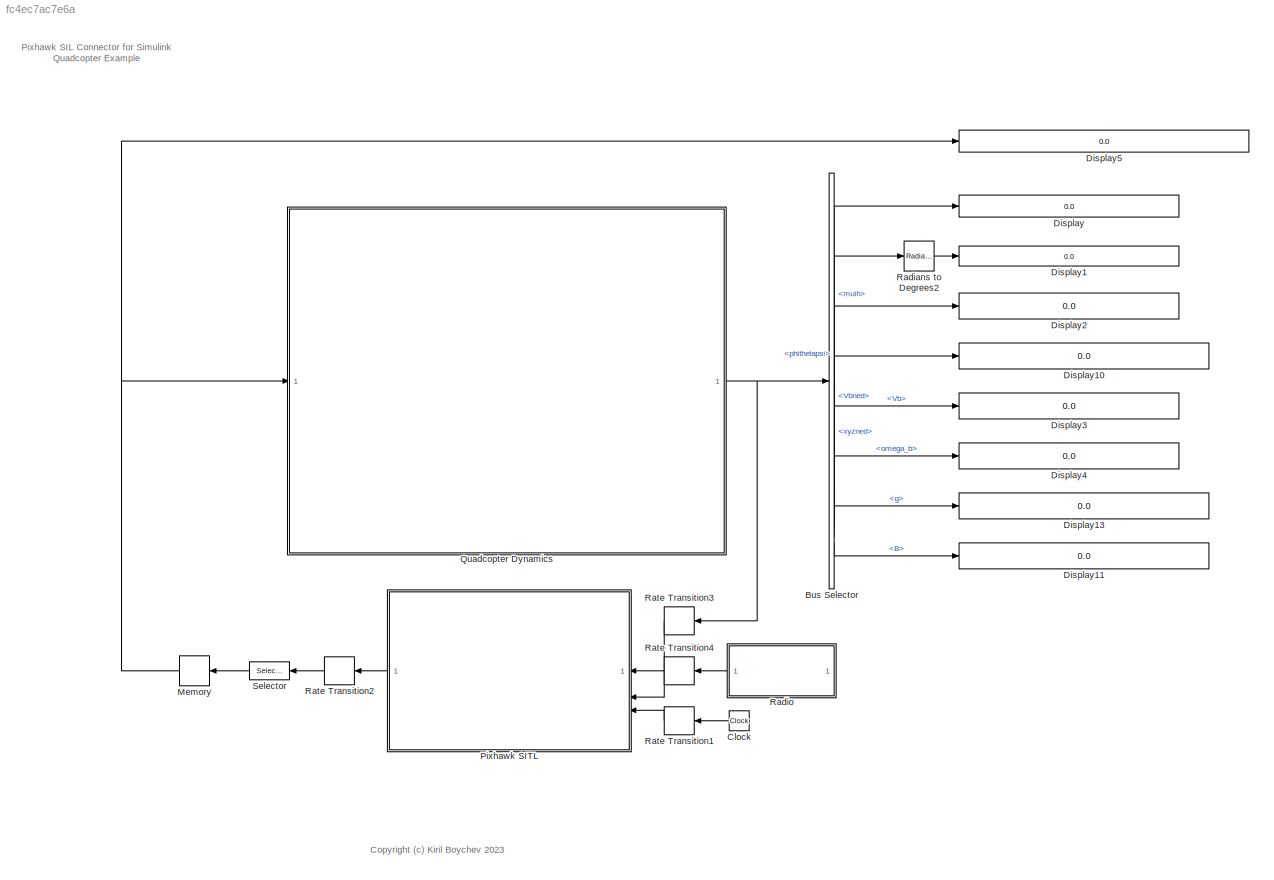
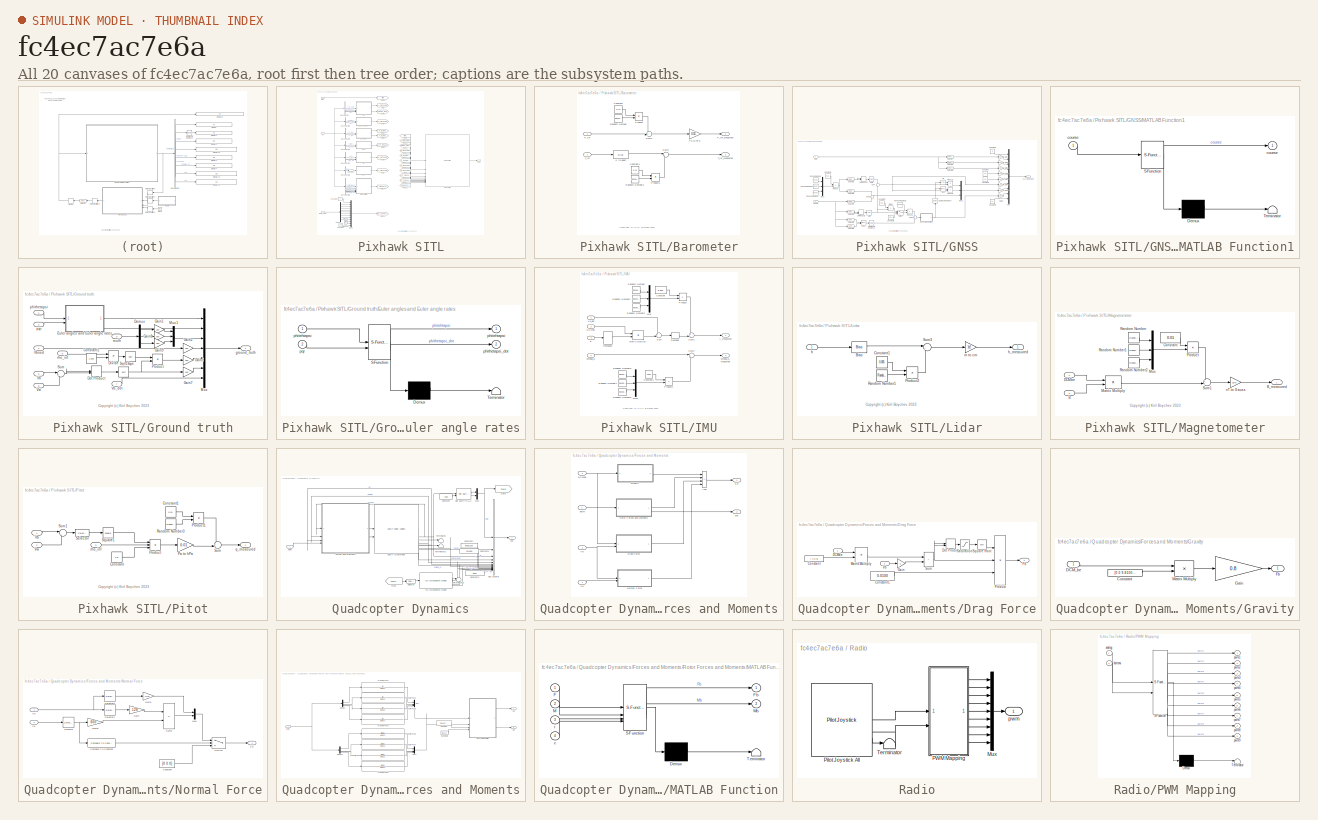
[diagram: thumbnail index - all 20 canvases of the model, root first then tree order]
MODEL slx_fc4ec7ac7e6a
KIND model
CONFIG AbsTol = auto
CONFIG EnableMultiTasking = off
CONFIG FixedStep = 0.004
CONFIG MaxStep = auto
CONFIG MinStep = auto
CONFIG RelTol = 1e-3
CONFIG SampleTimeConstraint = Unconstrained
CONFIG SolverName = ode4
CONFIG StartTime = 0.0
CONFIG StopTime = inf
WORKSPACE source: mxarray member
WORKSPACE sample_time = 0.004
BLOCK [BusSelector] Bus Selector
  OutputSignals = mulh,phithetapsi,Vbned,xyzned,Vb,omega_b,g,B
BLOCK [Clock] Clock
  NameLocation = top
BLOCK [Display] Display
  Decimation = 1
BLOCK [Display] Display1
  Decimation = 1
BLOCK [Display] Display10
  Decimation = 1
BLOCK [Display] Display11
  Decimation = 1
BLOCK [Display] Display13
  Decimation = 1
BLOCK [Display] Display2
  Decimation = 1
BLOCK [Display] Display3
  Decimation = 1
BLOCK [Display] Display4
  Decimation = 1
BLOCK [Display] Display5
  Decimation = 1
BLOCK [Memory] Memory
  InitialCondition = [0 0 0 0]
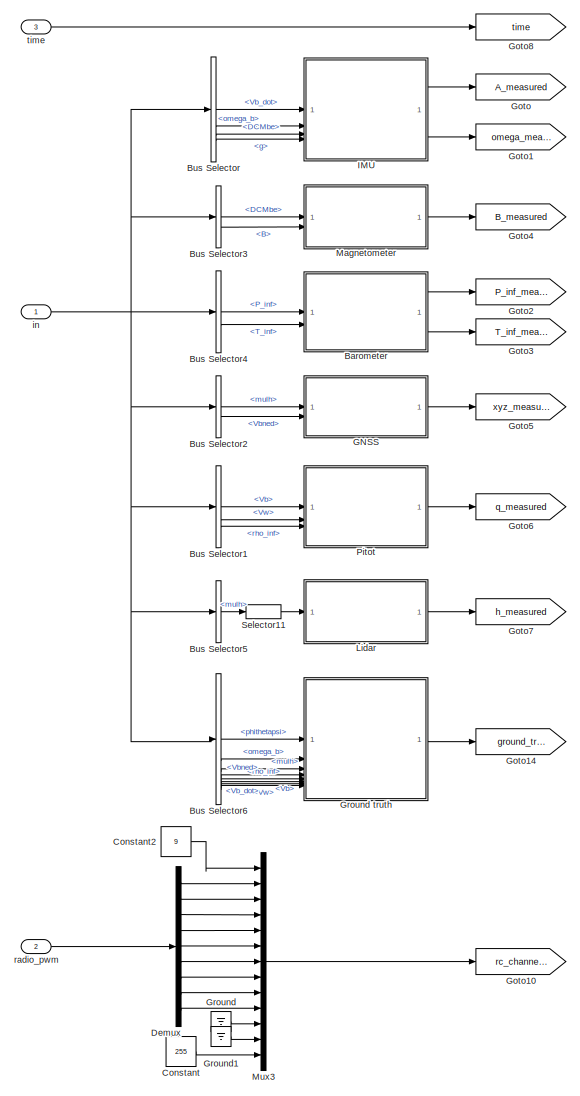
[diagram: Pixhawk SITL - part 1/2, left side, full height]
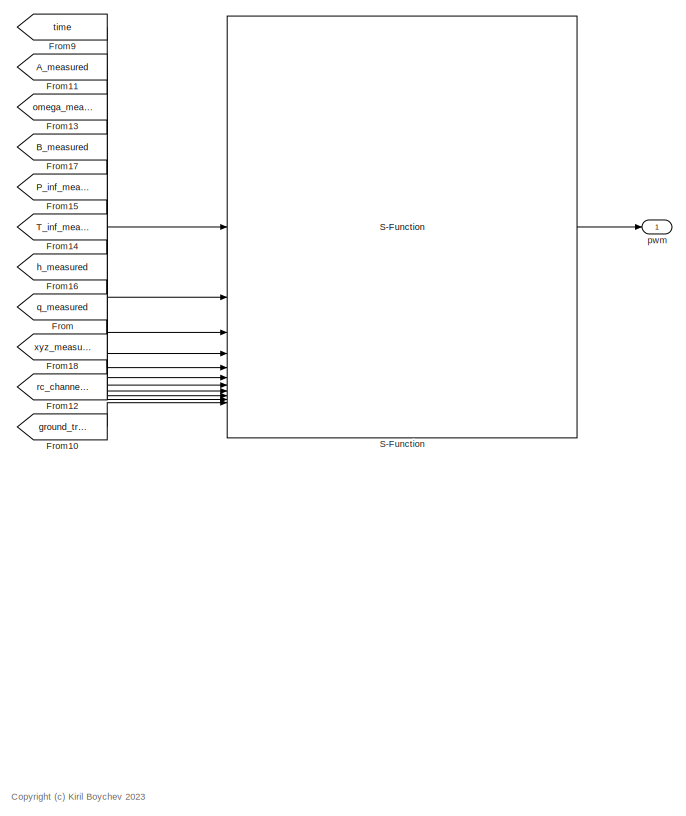
[diagram: Pixhawk SITL - part 2/2, middle right region]
BLOCK [SubSystem] Pixhawk SITL
BLOCK [SubSystem] Pixhawk SITL/Barometer
BLOCK [Constant] Pixhawk SITL/Barometer/Constant
  Value = 0.04
BLOCK [Constant] Pixhawk SITL/Barometer/Constant1
  Value = 0.01
BLOCK [Bias] Pixhawk SITL/Barometer/K to degC
  Bias = -273.15
  SaturateOnIntegerOverflow = off
BLOCK [Inport] Pixhawk SITL/Barometer/P_inf
BLOCK [Outport] Pixhawk SITL/Barometer/P_inf_measured
BLOCK [Gain] Pixhawk SITL/Barometer/Pa to hPa
  Gain = 0.01
BLOCK [Product] Pixhawk SITL/Barometer/Product
BLOCK [Product] Pixhawk SITL/Barometer/Product1
BLOCK [RandomNumber] Pixhawk SITL/Barometer/Random Number
  SampleTime = sample_time
  Seed = 9
BLOCK [RandomNumber] Pixhawk SITL/Barometer/Random Number3
  SampleTime = sample_time
  Seed = 10
BLOCK [Sum] Pixhawk SITL/Barometer/Sum1
  Inputs = ++|
BLOCK [Sum] Pixhawk SITL/Barometer/Sum2
  Inputs = |++
BLOCK [Inport] Pixhawk SITL/Barometer/T_inf
  Port = 2
BLOCK [Outport] Pixhawk SITL/Barometer/T_inf_measured
  Port = 2
BLOCK [BusSelector] Pixhawk SITL/Bus Selector
  OutputSignals = Vb_dot,omega_b,DCMbe,g
BLOCK [BusSelector] Pixhawk SITL/Bus Selector1
  OutputSignals = Vb,Vw,rho_inf
BLOCK [BusSelector] Pixhawk SITL/Bus Selector2
  OutputSignals = mulh,Vbned
BLOCK [BusSelector] Pixhawk SITL/Bus Selector3
  OutputSignals = DCMbe,B
BLOCK [BusSelector] Pixhawk SITL/Bus Selector4
  OutputSignals = P_inf,T_inf
BLOCK [BusSelector] Pixhawk SITL/Bus Selector5
  OutputSignals = mulh
BLOCK [BusSelector] Pixhawk SITL/Bus Selector6
  OutputSignals = phithetapsi,omega_b,mulh,Vbned,rho_inf,Vb,Vb_dot,Vw
BLOCK [Constant] Pixhawk SITL/Constant
  Value = 255
BLOCK [Constant] Pixhawk SITL/Constant2
  Value = 9
BLOCK [Demux] Pixhawk SITL/Demux
  Outputs = 9
BLOCK [From] Pixhawk SITL/From
  GotoTag = q_measured
BLOCK [From] Pixhawk SITL/From10
  GotoTag = ground_truth
BLOCK [From] Pixhawk SITL/From11
  GotoTag = A_measured
BLOCK [From] Pixhawk SITL/From12
  GotoTag = rc_channels
BLOCK [From] Pixhawk SITL/From13
  GotoTag = omega_measured
BLOCK [From] Pixhawk SITL/From14
  GotoTag = T_inf_measured
BLOCK [From] Pixhawk SITL/From15
  GotoTag = P_inf_measured
BLOCK [From] Pixhawk SITL/From16
  GotoTag = h_measured
BLOCK [From] Pixhawk SITL/From17
  GotoTag = B_measured
BLOCK [From] Pixhawk SITL/From18
  GotoTag = xyz_measured
BLOCK [From] Pixhawk SITL/From9
  GotoTag = time
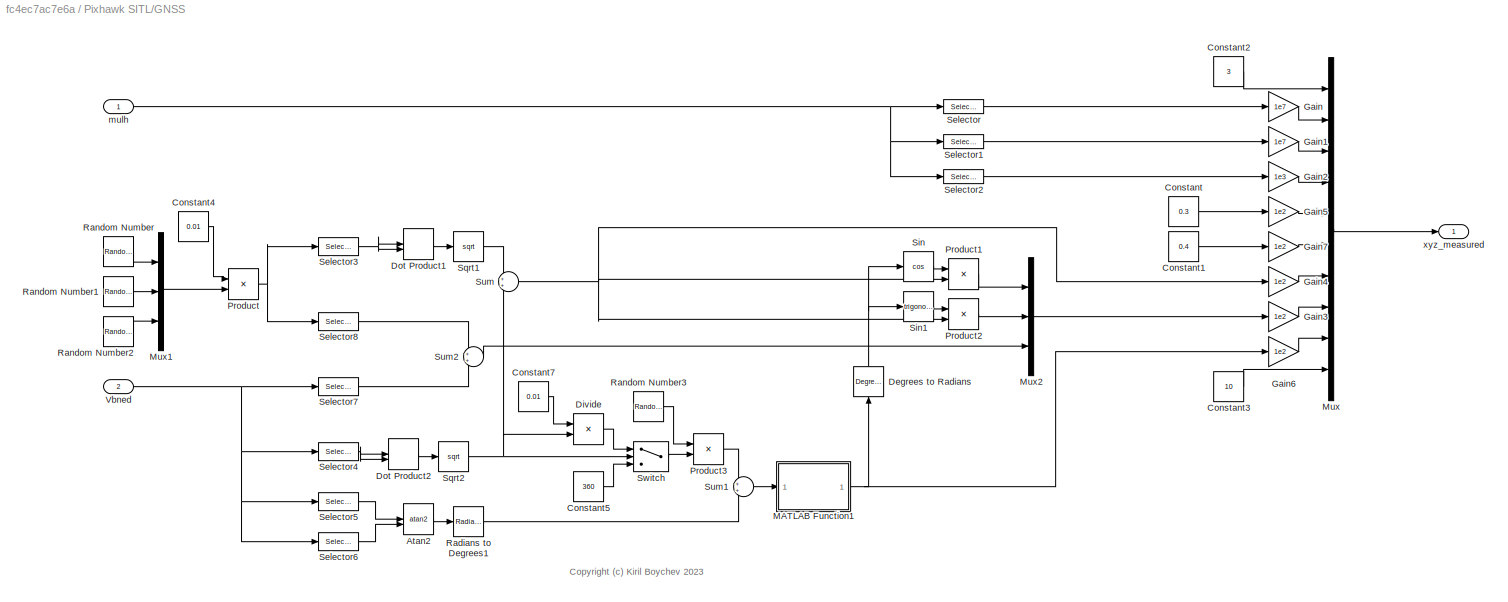
BLOCK [SubSystem] Pixhawk SITL/GNSS
BLOCK [Trigonometry] Pixhawk SITL/GNSS/Atan2
  Operator = atan2
BLOCK [Constant] Pixhawk SITL/GNSS/Constant
  Value = 0.3
BLOCK [Constant] Pixhawk SITL/GNSS/Constant1
  Value = 0.4
BLOCK [Constant] Pixhawk SITL/GNSS/Constant2
  Value = 3
BLOCK [Constant] Pixhawk SITL/GNSS/Constant3
  Value = 10
BLOCK [Constant] Pixhawk SITL/GNSS/Constant4
  Value = 0.01
BLOCK [Constant] Pixhawk SITL/GNSS/Constant5
  Value = 360
BLOCK [Constant] Pixhawk SITL/GNSS/Constant7
  Value = 0.01
BLOCK [Reference] Pixhawk SITL/GNSS/Degrees to Radians  REF=simulink_extras/Transformations/Degrees to
Radians
  NameLocation = right
  SourceBlock = simulink_extras/Transformations/Degrees to\nRadians
  SourceType = DegreesToRadians
BLOCK [Product] Pixhawk SITL/GNSS/Divide
  Inputs = */
BLOCK [DotProduct] Pixhawk SITL/GNSS/Dot Product1
  OutDataTypeStr = Inherit: Inherit via internal rule
BLOCK [DotProduct] Pixhawk SITL/GNSS/Dot Product2
  OutDataTypeStr = Inherit: Inherit via internal rule
BLOCK [Gain] Pixhawk SITL/GNSS/Gain
  Gain = 1e7
BLOCK [Gain] Pixhawk SITL/GNSS/Gain1
  Gain = 1e7
BLOCK [Gain] Pixhawk SITL/GNSS/Gain2
  Gain = 1e3
BLOCK [Gain] Pixhawk SITL/GNSS/Gain3
  Gain = 1e2
BLOCK [Gain] Pixhawk SITL/GNSS/Gain4
  Gain = 1e2
BLOCK [Gain] Pixhawk SITL/GNSS/Gain5
  Gain = 1e2
BLOCK [Gain] Pixhawk SITL/GNSS/Gain6
  Gain = 1e2
BLOCK [Gain] Pixhawk SITL/GNSS/Gain7
  Gain = 1e2
BLOCK [SubSystem] Pixhawk SITL/GNSS/MATLAB Function1
  ErrorFcn = Stateflow.Translate.translate
  PermitHierarchicalResolution = ExplicitOnly
  SFBlockType = MATLAB Function
  TreatAsAtomicUnit = on
BLOCK [Demux] Pixhawk SITL/GNSS/MATLAB Function1/ Demux 
  Outputs = 1
BLOCK [S-Function] Pixhawk SITL/GNSS/MATLAB Function1/ SFunction 
  EnableBusSupport = off
  FunctionName = sf_sfun
  PortCounts = [1 2]
  SFcnIsStateOwnerBlock = off
  SFunctionDeploymentMode = off
  Tag = Stateflow S-Function 7
BLOCK [Terminator] Pixhawk SITL/GNSS/MATLAB Function1/ Terminator 
BLOCK [Outport] Pixhawk SITL/GNSS/MATLAB Function1/course
BLOCK [Inport] Pixhawk SITL/GNSS/MATLAB Function1/course 
BLOCK [Mux] Pixhawk SITL/GNSS/Mux
  DisplayOption = bar
  Inputs = 10
BLOCK [Mux] Pixhawk SITL/GNSS/Mux1
  DisplayOption = bar
  Inputs = 3
BLOCK [Mux] Pixhawk SITL/GNSS/Mux2
  DisplayOption = bar
  Inputs = 3
BLOCK [Product] Pixhawk SITL/GNSS/Product
BLOCK [Product] Pixhawk SITL/GNSS/Product1
BLOCK [Product] Pixhawk SITL/GNSS/Product2
BLOCK [Product] Pixhawk SITL/GNSS/Product3
BLOCK [Reference] Pixhawk SITL/GNSS/Radians to Degrees1  REF=simulink_extras/Transformations/Radians
to Degrees
  SourceBlock = simulink_extras/Transformations/Radians\nto Degrees
  SourceType = RadiansToDegrees
BLOCK [RandomNumber] Pixhawk SITL/GNSS/Random Number
  SampleTime = sample_time
  Seed = 11
BLOCK [RandomNumber] Pixhawk SITL/GNSS/Random Number1
  SampleTime = sample_time
  Seed = 12
BLOCK [RandomNumber] Pixhawk SITL/GNSS/Random Number2
  SampleTime = sample_time
  Seed = 13
BLOCK [RandomNumber] Pixhawk SITL/GNSS/Random Number3
  SampleTime = sample_time
  Seed = 14
BLOCK [Selector] Pixhawk SITL/GNSS/Selector
  IndexMode = Zero-based
  IndexOptions = Index vector (dialog)
  Indices = 0
  InputPortWidth = 3
  OutputSizes = 1
BLOCK [Selector] Pixhawk SITL/GNSS/Selector1
  IndexMode = Zero-based
  IndexOptions = Index vector (dialog)
  Indices = 1
  InputPortWidth = 3
  OutputSizes = 1
BLOCK [Selector] Pixhawk SITL/GNSS/Selector2
  IndexMode = Zero-based
  IndexOptions = Index vector (dialog)
  Indices = 2
  InputPortWidth = 3
  OutputSizes = 1
BLOCK [Selector] Pixhawk SITL/GNSS/Selector3
  IndexMode = Zero-based
  IndexOptions = Index vector (dialog)
  Indices = [0 1]
  InputPortWidth = 3
  OutputSizes = 1
BLOCK [Selector] Pixhawk SITL/GNSS/Selector4
  IndexMode = Zero-based
  IndexOptions = Index vector (dialog)
  Indices = [0 1]
  InputPortWidth = 3
  OutputSizes = 1
BLOCK [Selector] Pixhawk SITL/GNSS/Selector5
  IndexMode = Zero-based
  IndexOptions = Index vector (dialog)
  Indices = 1
  InputPortWidth = 3
  OutputSizes = 1
BLOCK [Selector] Pixhawk SITL/GNSS/Selector6
  IndexMode = Zero-based
  IndexOptions = Index vector (dialog)
  Indices = 0
  InputPortWidth = 3
  OutputSizes = 1
BLOCK [Selector] Pixhawk SITL/GNSS/Selector7
  IndexMode = Zero-based
  IndexOptions = Index vector (dialog)
  Indices = 2
  InputPortWidth = 3
  OutputSizes = 1
BLOCK [Selector] Pixhawk SITL/GNSS/Selector8
  IndexMode = Zero-based
  IndexOptions = Index vector (dialog)
  Indices = 2
  InputPortWidth = 3
  OutputSizes = 1
BLOCK [Trigonometry] Pixhawk SITL/GNSS/Sin
  Operator = cos
BLOCK [Trigonometry] Pixhawk SITL/GNSS/Sin1
BLOCK [Sqrt] Pixhawk SITL/GNSS/Sqrt1
BLOCK [Sqrt] Pixhawk SITL/GNSS/Sqrt2
BLOCK [Sum] Pixhawk SITL/GNSS/Sum
  NameLocation = top
BLOCK [Sum] Pixhawk SITL/GNSS/Sum1
BLOCK [Sum] Pixhawk SITL/GNSS/Sum2
BLOCK [Switch] Pixhawk SITL/GNSS/Switch
  Criteria = u2 > Threshold
  InputSameDT = off
  SaturateOnIntegerOverflow = off
BLOCK [Inport] Pixhawk SITL/GNSS/Vbned
  Port = 2
BLOCK [Inport] Pixhawk SITL/GNSS/mulh
BLOCK [Outport] Pixhawk SITL/GNSS/xyz_measured
BLOCK [Goto] Pixhawk SITL/Goto
  GotoTag = A_measured
BLOCK [Goto] Pixhawk SITL/Goto1
  GotoTag = omega_measured
BLOCK [Goto] Pixhawk SITL/Goto10
  GotoTag = rc_channels
BLOCK [Goto] Pixhawk SITL/Goto14
  GotoTag = ground_truth
BLOCK [Goto] Pixhawk SITL/Goto2
  GotoTag = P_inf_measured
BLOCK [Goto] Pixhawk SITL/Goto3
  GotoTag = T_inf_measured
BLOCK [Goto] Pixhawk SITL/Goto4
  GotoTag = B_measured
BLOCK [Goto] Pixhawk SITL/Goto5
  GotoTag = xyz_measured
BLOCK [Goto] Pixhawk SITL/Goto6
  GotoTag = q_measured
BLOCK [Goto] Pixhawk SITL/Goto7
  GotoTag = h_measured
BLOCK [Goto] Pixhawk SITL/Goto8
  GotoTag = time
BLOCK [Ground] Pixhawk SITL/Ground
BLOCK [SubSystem] Pixhawk SITL/Ground truth
BLOCK [Constant] Pixhawk SITL/Ground truth/Constant1
  Value = 1.225
BLOCK [Demux] Pixhawk SITL/Ground truth/Demux
  Outputs = 3
BLOCK [Product] Pixhawk SITL/Ground truth/Divide
  Inputs = */
BLOCK [DotProduct] Pixhawk SITL/Ground truth/Dot Product
  OutDataTypeStr = Inherit: Inherit via internal rule
BLOCK [SubSystem] Pixhawk SITL/Ground truth/Euler angles and Euler angle rates
  ErrorFcn = Stateflow.Translate.translate
  PermitHierarchicalResolution = ExplicitOnly
  SFBlockType = MATLAB Function
  TreatAsAtomicUnit = on
BLOCK [Demux] Pixhawk SITL/Ground truth/Euler angles and Euler angle rates/ Demux 
  Outputs = 1
BLOCK [S-Function] Pixhawk SITL/Ground truth/Euler angles and Euler angle rates/ SFunction 
  EnableBusSupport = off
  FunctionName = sf_sfun
  PortCounts = [2 3]
  SFcnIsStateOwnerBlock = off
  SFunctionDeploymentMode = off
  Tag = Stateflow S-Function 8
BLOCK [Terminator] Pixhawk SITL/Ground truth/Euler angles and Euler angle rates/ Terminator 
BLOCK [Outport] Pixhawk SITL/Ground truth/Euler angles and Euler angle rates/phitehtapsi
BLOCK [Inport] Pixhawk SITL/Ground truth/Euler angles and Euler angle rates/phitehtapsi 
BLOCK [Outport] Pixhawk SITL/Ground truth/Euler angles and Euler angle rates/phithetapsi_dot
  Port = 2
BLOCK [Inport] Pixhawk SITL/Ground truth/Euler angles and Euler angle rates/pqr
  Port = 2
BLOCK [Gain] Pixhawk SITL/Ground truth/Gain1
  Gain = 1e7
BLOCK [Gain] Pixhawk SITL/Ground truth/Gain2
  Gain = 1e2
BLOCK [Gain] Pixhawk SITL/Ground truth/Gain5
  Gain = 1e2
BLOCK [Gain] Pixhawk SITL/Ground truth/Gain7
  Gain = 1e2
BLOCK [Gain] Pixhawk SITL/Ground truth/Gain8
  Gain = 1e7
BLOCK [Gain] Pixhawk SITL/Ground truth/Gain9
  Gain = 1e3
BLOCK [Mux] Pixhawk SITL/Ground truth/Mux
  DisplayOption = bar
  Inputs = 7
BLOCK [Mux] Pixhawk SITL/Ground truth/Mux1
  DisplayOption = bar
  Inputs = 3
BLOCK [Product] Pixhawk SITL/Ground truth/Product
BLOCK [Sqrt] Pixhawk SITL/Ground truth/Sqrt
BLOCK [Sqrt] Pixhawk SITL/Ground truth/Sqrt1
BLOCK [Sum] Pixhawk SITL/Ground truth/Sum
  Inputs = |+-
BLOCK [Inport] Pixhawk SITL/Ground truth/Vb
  Port = 6
BLOCK [Inport] Pixhawk SITL/Ground truth/Vb_dot
  Port = 7
BLOCK [Inport] Pixhawk SITL/Ground truth/Vbned
  Port = 4
BLOCK [Inport] Pixhawk SITL/Ground truth/Vw
  Port = 8
BLOCK [Outport] Pixhawk SITL/Ground truth/ground_truth
BLOCK [Inport] Pixhawk SITL/Ground truth/mulh
  Port = 3
BLOCK [Inport] Pixhawk SITL/Ground truth/phithetapsi
BLOCK [Inport] Pixhawk SITL/Ground truth/pqr
  Port = 2
BLOCK [Inport] Pixhawk SITL/Ground truth/rho_inf
  Port = 5
BLOCK [Ground] Pixhawk SITL/Ground1
BLOCK [SubSystem] Pixhawk SITL/IMU
BLOCK [Outport] Pixhawk SITL/IMU/A_measured
BLOCK [Constant] Pixhawk SITL/IMU/Constant
  Value = 0.004
BLOCK [Constant] Pixhawk SITL/IMU/Constant1
  Value = 0.002
BLOCK [Inport] Pixhawk SITL/IMU/DCMbe
  Port = 3
BLOCK [Product] Pixhawk SITL/IMU/Matrix Multiply
  Multiplication = Matrix(*)
BLOCK [Mux] Pixhawk SITL/IMU/Mux
  DisplayOption = bar
  Inputs = 3
BLOCK [Mux] Pixhawk SITL/IMU/Mux1
  DisplayOption = bar
  Inputs = 3
BLOCK [Product] Pixhawk SITL/IMU/Product
BLOCK [Product] Pixhawk SITL/IMU/Product1
BLOCK [RandomNumber] Pixhawk SITL/IMU/Random Number
  SampleTime = sample_time
BLOCK [RandomNumber] Pixhawk SITL/IMU/Random Number1
  SampleTime = sample_time
  Seed = 1
BLOCK [RandomNumber] Pixhawk SITL/IMU/Random Number2
  SampleTime = sample_time
  Seed = 2
BLOCK [RandomNumber] Pixhawk SITL/IMU/Random Number3
  SampleTime = sample_time
  Seed = 3
BLOCK [RandomNumber] Pixhawk SITL/IMU/Random Number4
  SampleTime = sample_time
  Seed = 4
BLOCK [RandomNumber] Pixhawk SITL/IMU/Random Number5
  SampleTime = sample_time
  Seed = 5
BLOCK [Reshape] Pixhawk SITL/IMU/Reshape
BLOCK [Reshape] Pixhawk SITL/IMU/Reshape1
  OutputDimensionality = Column vector (2-D)
BLOCK [Sum] Pixhawk SITL/IMU/Sum
  Inputs = +-|
BLOCK [Sum] Pixhawk SITL/IMU/Sum1
  Inputs = ++|
BLOCK [Sum] Pixhawk SITL/IMU/Sum2
  Inputs = |++
BLOCK [Inport] Pixhawk SITL/IMU/Vb_dot
BLOCK [Inport] Pixhawk SITL/IMU/g
  Port = 4
BLOCK [Inport] Pixhawk SITL/IMU/omega_b
  Port = 2
BLOCK [Outport] Pixhawk SITL/IMU/omega_b_measured
  Port = 2
BLOCK [SubSystem] Pixhawk SITL/Lidar
BLOCK [Bias] Pixhawk SITL/Lidar/Bias
  Bias = -488
  SaturateOnIntegerOverflow = off
BLOCK [Constant] Pixhawk SITL/Lidar/Constant1
  Value = 0.005
BLOCK [Product] Pixhawk SITL/Lidar/Product2
BLOCK [RandomNumber] Pixhawk SITL/Lidar/Random Number1
  SampleTime = sample_time
  Seed = 16
BLOCK [Sum] Pixhawk SITL/Lidar/Sum3
  Inputs = |++
BLOCK [Inport] Pixhawk SITL/Lidar/h
BLOCK [Outport] Pixhawk SITL/Lidar/h_measured
BLOCK [Gain] Pixhawk SITL/Lidar/m to cm
  Gain = 1e2
BLOCK [SubSystem] Pixhawk SITL/Magnetometer
BLOCK [Inport] Pixhawk SITL/Magnetometer/B
  Port = 2
BLOCK [Outport] Pixhawk SITL/Magnetometer/B_measured
BLOCK [Constant] Pixhawk SITL/Magnetometer/Constant
  Value = 0.01
BLOCK [Inport] Pixhawk SITL/Magnetometer/DCMbe
BLOCK [Product] Pixhawk SITL/Magnetometer/Matrix Multiply
  Multiplication = Matrix(*)
BLOCK [Mux] Pixhawk SITL/Magnetometer/Mux
  DisplayOption = bar
  Inputs = 3
BLOCK [Product] Pixhawk SITL/Magnetometer/Product
BLOCK [RandomNumber] Pixhawk SITL/Magnetometer/Random Number
  SampleTime = sample_time
  Seed = 6
BLOCK [RandomNumber] Pixhawk SITL/Magnetometer/Random Number1
  SampleTime = sample_time
  Seed = 7
BLOCK [RandomNumber] Pixhawk SITL/Magnetometer/Random Number2
  SampleTime = sample_time
  Seed = 8
BLOCK [Sum] Pixhawk SITL/Magnetometer/Sum1
  Inputs = ++|
BLOCK [Gain] Pixhawk SITL/Magnetometer/nT to Gauss
  Gain = 1e-5
BLOCK [Mux] Pixhawk SITL/Mux3
  DisplayOption = bar
  Inputs = 13
BLOCK [SubSystem] Pixhawk SITL/Pitot
BLOCK [Constant] Pixhawk SITL/Pitot/Constant
  Value = 0.5
BLOCK [Constant] Pixhawk SITL/Pitot/Constant1
  Value = 0.01
BLOCK [Gain] Pixhawk SITL/Pitot/Pa to hPa
  Gain = 0.01
BLOCK [Product] Pixhawk SITL/Pitot/Product
  Inputs = 3
BLOCK [Product] Pixhawk SITL/Pitot/Product1
BLOCK [RandomNumber] Pixhawk SITL/Pitot/Random Number3
  SampleTime = sample_time
  Seed = 15
BLOCK [Selector] Pixhawk SITL/Pitot/Selector
  IndexMode = Zero-based
  IndexOptions = Index vector (dialog)
  Indices = 0
  InputPortWidth = 3
  OutputSizes = 1
BLOCK [Math] Pixhawk SITL/Pitot/Square1
  Operator = square
BLOCK [Sum] Pixhawk SITL/Pitot/Sum
  Inputs = ++|
BLOCK [Sum] Pixhawk SITL/Pitot/Sum1
  Inputs = |+-
BLOCK [Inport] Pixhawk SITL/Pitot/Vb
BLOCK [Inport] Pixhawk SITL/Pitot/Vw
  Port = 2
BLOCK [Outport] Pixhawk SITL/Pitot/q_measured
BLOCK [Inport] Pixhawk SITL/Pitot/rho_inf
  Port = 3
BLOCK [S-Function] Pixhawk SITL/S-Function
  EnableBusSupport = off
  FunctionName = pixhawk_sil_connector
  SFcnIsStateOwnerBlock = off
  SFunctionDeploymentMode = off
BLOCK [Selector] Pixhawk SITL/Selector11
  IndexMode = Zero-based
  IndexOptions = Index vector (dialog)
  Indices = 2
  InputPortWidth = 3
  OutputSizes = 1
BLOCK [Inport] Pixhawk SITL/in
BLOCK [Outport] Pixhawk SITL/pwm
BLOCK [Inport] Pixhawk SITL/radio_pwm
  Port = 2
BLOCK [Inport] Pixhawk SITL/time
  Port = 3
BLOCK [SubSystem] Quadcopter Dynamics
BLOCK [Reference] Quadcopter Dynamics/6DOF (Quaternion)  REF=shared6dof/6DOF (Euler Angles)
  SourceBlock = shared6dof/6DOF (Euler Angles)
  SourceType = 6DOF EoM (Body Axis)
BLOCK [BusCreator] Quadcopter Dynamics/Bus Creator
  DisplayOption = bar
  InheritFromInputs = on
  Inputs = 14
BLOCK [Constant] Quadcopter Dynamics/Constant
  Value = -488
BLOCK [Constant] Quadcopter Dynamics/Constant1
  Value = [0 0 9.8100]
BLOCK [Constant] Quadcopter Dynamics/Constant2
  Value = Env.mag
BLOCK [Constant] Quadcopter Dynamics/Constant3
  Value = [0 0 0]
BLOCK [Reference] Quadcopter Dynamics/Flat Earth to LLA  REF=aerolibtransform2/Flat Earth to LLA
  SourceBlock = aerolibtransform2/Flat Earth to LLA
  SourceType = Flat Earth to LLA
BLOCK [SubSystem] Quadcopter Dynamics/Forces and Moments
BLOCK [Sum] Quadcopter Dynamics/Forces and Moments/Add
  IconShape = rectangular
  Inputs = ++++
BLOCK [Inport] Quadcopter Dynamics/Forces and Moments/DCMbe
  Port = 2
BLOCK [SubSystem] Quadcopter Dynamics/Forces and Moments/Drag Force
BLOCK [Constant] Quadcopter Dynamics/Forces and Moments/Drag Force/Constant
  Value = [ 0 0 0]
BLOCK [Constant] Quadcopter Dynamics/Forces and Moments/Drag Force/Constant1
  Value = 0.0100
BLOCK [Inport] Quadcopter Dynamics/Forces and Moments/Drag Force/DCMbe
BLOCK [DotProduct] Quadcopter Dynamics/Forces and Moments/Drag Force/Dot Product
  OutDataTypeStr = Inherit: Inherit via internal rule
BLOCK [Outport] Quadcopter Dynamics/Forces and Moments/Drag Force/Fb
BLOCK [Gain] Quadcopter Dynamics/Forces and Moments/Drag Force/Gain
  Gain = -1
BLOCK [Product] Quadcopter Dynamics/Forces and Moments/Drag Force/Matrix Multiply
  Multiplication = Matrix(*)
BLOCK [Product] Quadcopter Dynamics/Forces and Moments/Drag Force/Product
  Inputs = 3
BLOCK [Saturate] Quadcopter Dynamics/Forces and Moments/Drag Force/Saturation
  LowerLimit = 0.0001
  UpperLimit = inf
BLOCK [Sqrt] Quadcopter Dynamics/Forces and Moments/Drag Force/Square Root
BLOCK [Sum] Quadcopter Dynamics/Forces and Moments/Drag Force/Sum
  IconShape = rectangular
BLOCK [Inport] Quadcopter Dynamics/Forces and Moments/Drag Force/Vb
  Port = 2
BLOCK [Outport] Quadcopter Dynamics/Forces and Moments/Fb
BLOCK [SubSystem] Quadcopter Dynamics/Forces and Moments/Gravity
BLOCK [Constant] Quadcopter Dynamics/Forces and Moments/Gravity/Constant
  Value = [0 0 9.8100]'
BLOCK [Inport] Quadcopter Dynamics/Forces and Moments/Gravity/DCM_be
BLOCK [Outport] Quadcopter Dynamics/Forces and Moments/Gravity/Fb
BLOCK [Gain] Quadcopter Dynamics/Forces and Moments/Gravity/Gain
  Gain = 0.8
BLOCK [Product] Quadcopter Dynamics/Forces and Moments/Gravity/Matrix Multiply
  Multiplication = Matrix(*)
BLOCK [Outport] Quadcopter Dynamics/Forces and Moments/Mb
  Port = 2
BLOCK [SubSystem] Quadcopter Dynamics/Forces and Moments/Normal Force
BLOCK [Reference] Quadcopter Dynamics/Forces and Moments/Normal Force/Compare To Constant  REF=simulink/Logic and Bit
Operations/Compare
To Constant
  SourceBlock = simulink/Logic and Bit\nOperations/Compare\nTo Constant
  SourceType = Compare To Constant
BLOCK [Constant] Quadcopter Dynamics/Forces and Moments/Normal Force/Constant
  SampleTime = -1
  Value = [0 0 0]
BLOCK [Outport] Quadcopter Dynamics/Forces and Moments/Normal Force/Fb
BLOCK [Gain] Quadcopter Dynamics/Forces and Moments/Normal Force/Gain
  Gain = 128
  OutDataTypeStr = Inherit: Same as input
  ParamDataTypeStr = Inherit: Same as input
  SaturateOnIntegerOverflow = on
BLOCK [Gain] Quadcopter Dynamics/Forces and Moments/Normal Force/Gain1
  Gain = -0.01
BLOCK [Gain] Quadcopter Dynamics/Forces and Moments/Normal Force/Gain2
  Gain = 800
  OutDataTypeStr = Inherit: Same as input
  ParamDataTypeStr = Inherit: Same as input
  SaturateOnIntegerOverflow = on
BLOCK [Mux] Quadcopter Dynamics/Forces and Moments/Normal Force/Mux
  DisplayOption = bar
  Inputs = 2
BLOCK [Selector] Quadcopter Dynamics/Forces and Moments/Normal Force/Selector
  IndexOptions = Index vector (dialog)
  Indices = [3]
  InputPortWidth = 3
  OutputSizes = 1
BLOCK [Selector] Quadcopter Dynamics/Forces and Moments/Normal Force/Selector1
  IndexOptions = Index vector (dialog)
  Indices = [3]
  InputPortWidth = 3
  OutputSizes = 1
BLOCK [Selector] Quadcopter Dynamics/Forces and Moments/Normal Force/Selector2
  IndexOptions = Index vector (dialog)
  Indices = [1 2]
  InputPortWidth = 3
  OutputSizes = 1
BLOCK [Sum] Quadcopter Dynamics/Forces and Moments/Normal Force/Sum2
  IconShape = rectangular
  InputSameDT = on
  Inputs = --
  OutDataTypeStr = Inherit: Same as first input
  SaturateOnIntegerOverflow = on
BLOCK [Switch] Quadcopter Dynamics/Forces and Moments/Normal Force/Switch
  Criteria = u2 > Threshold
  InputSameDT = off
  SaturateOnIntegerOverflow = off
BLOCK [Inport] Quadcopter Dynamics/Forces and Moments/Normal Force/Vb
BLOCK [Inport] Quadcopter Dynamics/Forces and Moments/Normal Force/Xe
  Port = 2
BLOCK [SubSystem] Quadcopter Dynamics/Forces and Moments/Rotor Forces and Moments
BLOCK [Constant] Quadcopter Dynamics/Forces and Moments/Rotor Forces and Moments/Constant
  Value = [    0.1167   -0.1167    0.1167   -0.1167;\n    0.1167   -0.1167   -0.1167    0.1167;\n         0         0         0         0]
BLOCK [Constant] Quadcopter Dynamics/Forces and Moments/Rotor Forces and Moments/Constant1
  Value = [-1 -1 1 1]
BLOCK [Demux] Quadcopter Dynamics/Forces and Moments/Rotor Forces and Moments/Demux
BLOCK [Demux] Quadcopter Dynamics/Forces and Moments/Rotor Forces and Moments/Demux1
BLOCK [Outport] Quadcopter Dynamics/Forces and Moments/Rotor Forces and Moments/Fb
BLOCK [SubSystem] Quadcopter Dynamics/Forces and Moments/Rotor Forces and Moments/MATLAB Function
  ErrorFcn = Stateflow.Translate.translate
  PermitHierarchicalResolution = ExplicitOnly
  SFBlockType = MATLAB Function
  TreatAsAtomicUnit = on
BLOCK [Demux] Quadcopter Dynamics/Forces and Moments/Rotor Forces and Moments/MATLAB Function/ Demux 
  Outputs = 1
BLOCK [S-Function] Quadcopter Dynamics/Forces and Moments/Rotor Forces and Moments/MATLAB Function/ SFunction 
  EnableBusSupport = off
  FunctionName = sf_sfun
  PortCounts = [4 3]
  SFcnIsStateOwnerBlock = off
  SFunctionDeploymentMode = off
  Tag = Stateflow S-Function 1
BLOCK [Terminator] Quadcopter Dynamics/Forces and Moments/Rotor Forces and Moments/MATLAB Function/ Terminator 
BLOCK [Inport] Quadcopter Dynamics/Forces and Moments/Rotor Forces and Moments/MATLAB Function/F
BLOCK [Outport] Quadcopter Dynamics/Forces and Moments/Rotor Forces and Moments/MATLAB Function/Fb
  VectorParamsAs1DForOutWhenUnconnected = off
BLOCK [Inport] Quadcopter Dynamics/Forces and Moments/Rotor Forces and Moments/MATLAB Function/M
  Port = 2
BLOCK [Outport] Quadcopter Dynamics/Forces and Moments/Rotor Forces and Moments/MATLAB Function/Mb
  Port = 2
BLOCK [Inport] Quadcopter Dynamics/Forces and Moments/Rotor Forces and Moments/MATLAB Function/c
  Port = 4
BLOCK [Inport] Quadcopter Dynamics/Forces and Moments/Rotor Forces and Moments/MATLAB Function/r
  Port = 3
BLOCK [Outport] Quadcopter Dynamics/Forces and Moments/Rotor Forces and Moments/Mb
  Port = 2
BLOCK [Mux] Quadcopter Dynamics/Forces and Moments/Rotor Forces and Moments/Mux
  DisplayOption = bar
BLOCK [Mux] Quadcopter Dynamics/Forces and Moments/Rotor Forces and Moments/Mux1
  DisplayOption = bar
BLOCK [TransferFcn] Quadcopter Dynamics/Forces and Moments/Rotor Forces and Moments/Transfer Fcn1
  Denominator = [0.05 1]
  Numerator = [4]
BLOCK [TransferFcn] Quadcopter Dynamics/Forces and Moments/Rotor Forces and Moments/Transfer Fcn2
  Denominator = [0.05 1]
  Numerator = [4]
BLOCK [TransferFcn] Quadcopter Dynamics/Forces and Moments/Rotor Forces and Moments/Transfer Fcn3
  Denominator = [0.05 1]
  Numerator = [4]
BLOCK [TransferFcn] Quadcopter Dynamics/Forces and Moments/Rotor Forces and Moments/Transfer Fcn4
  Denominator = [0.05 1]
  Numerator = [4]
BLOCK [TransferFcn] Quadcopter Dynamics/Forces and Moments/Rotor Forces and Moments/Transfer Fcn5
  Denominator = [0.05 1]
  Numerator = [0.05]
BLOCK [TransferFcn] Quadcopter Dynamics/Forces and Moments/Rotor Forces and Moments/Transfer Fcn6
  Denominator = [0.05 1]
  Numerator = [0.05]
BLOCK [TransferFcn] Quadcopter Dynamics/Forces and Moments/Rotor Forces and Moments/Transfer Fcn7
  Denominator = [0.05 1]
  Numerator = [0.05]
BLOCK [TransferFcn] Quadcopter Dynamics/Forces and Moments/Rotor Forces and Moments/Transfer Fcn8
  Denominator = [0.05 1]
  Numerator = [0.05]
BLOCK [Inport] Quadcopter Dynamics/Forces and Moments/Rotor Forces and Moments/pwm
BLOCK [Inport] Quadcopter Dynamics/Forces and Moments/Vb
  Port = 3
BLOCK [Inport] Quadcopter Dynamics/Forces and Moments/Xe
BLOCK [Inport] Quadcopter Dynamics/Forces and Moments/pwm
  Port = 4
BLOCK [From] Quadcopter Dynamics/From
  GotoTag = mulh
BLOCK [Goto] Quadcopter Dynamics/Goto
  GotoTag = mulh
BLOCK [Reference] Quadcopter Dynamics/ISA Atmosphere Model  REF=aerolibatmos2/ISA Atmosphere Model
  SourceBlock = aerolibatmos2/ISA Atmosphere Model
  SourceType = International Standard Atmosphere Model
BLOCK [Mux] Quadcopter Dynamics/Mux
  DisplayOption = bar
  Inputs = 2
BLOCK [Selector] Quadcopter Dynamics/Selector
  IndexMode = Zero-based
  IndexOptions = Index vector (dialog)
  Indices = 2
  InputPortWidth = 3
  OutputSizes = 1
BLOCK [Terminator] Quadcopter Dynamics/Terminator
BLOCK [Terminator] Quadcopter Dynamics/Terminator1
BLOCK [Terminator] Quadcopter Dynamics/Terminator3
BLOCK [Outport] Quadcopter Dynamics/out
BLOCK [Inport] Quadcopter Dynamics/pwm
BLOCK [Reference] Radians to Degrees2  REF=simulink_extras/Transformations/Radians
to Degrees
  SourceBlock = simulink_extras/Transformations/Radians\nto Degrees
  SourceType = RadiansToDegrees
BLOCK [SubSystem] Radio
  Commented = on
BLOCK [Mux] Radio/Mux
  DisplayOption = bar
  Inputs = 9
BLOCK [SubSystem] Radio/PWM Mapping
  ErrorFcn = Stateflow.Translate.translate
  PermitHierarchicalResolution = ExplicitOnly
  SFBlockType = MATLAB Function
  TreatAsAtomicUnit = on
BLOCK [Demux] Radio/PWM Mapping/ Demux 
  Outputs = 1
BLOCK [S-Function] Radio/PWM Mapping/ SFunction 
  EnableBusSupport = off
  FunctionName = sf_sfun
  PortCounts = [2 10]
  SFcnIsStateOwnerBlock = off
  SFunctionDeploymentMode = off
  Tag = Stateflow S-Function 4
BLOCK [Terminator] Radio/PWM Mapping/ Terminator 
BLOCK [Inport] Radio/PWM Mapping/analog
BLOCK [Inport] Radio/PWM Mapping/buttons
  Port = 2
BLOCK [Outport] Radio/PWM Mapping/pwm1
BLOCK [Outport] Radio/PWM Mapping/pwm2
  Port = 2
BLOCK [Outport] Radio/PWM Mapping/pwm3
  Port = 3
BLOCK [Outport] Radio/PWM Mapping/pwm4
  Port = 4
BLOCK [Outport] Radio/PWM Mapping/pwm5
  Port = 5
BLOCK [Outport] Radio/PWM Mapping/pwm6
  Port = 6
BLOCK [Outport] Radio/PWM Mapping/pwm7
  Port = 7
BLOCK [Outport] Radio/PWM Mapping/pwm8
  Port = 8
BLOCK [Outport] Radio/PWM Mapping/pwm9
  Port = 9
BLOCK [Reference] Radio/Pilot Joystick All  REF=aerolibanimutils/Pilot Joystick
  SourceBlock = aerolibanimutils/Pilot Joystick
  SourceType = PilotJoystick
BLOCK [Terminator] Radio/Terminator
BLOCK [Outport] Radio/pwm
BLOCK [RateTransition] Rate Transition1
  OutPortSampleTime = sample_time
BLOCK [RateTransition] Rate Transition2
  OutPortSampleTime = sample_time
BLOCK [RateTransition] Rate Transition3
  OutPortSampleTime = sample_time
BLOCK [RateTransition] Rate Transition4
  OutPortSampleTime = sample_time
BLOCK [Selector] Selector
  IndexMode = Zero-based
  IndexOptions = Index vector (dialog)
  Indices = [0:3]
  InputPortWidth = 16
  NameLocation = top
  OutputSizes = 1
ANNOTATION (root): Pixhawk SIL Connector for Simulink Quadcopter Example
ANNOTATION (root): <copyright redacted>
ANNOTATION Pixhawk SITL: <copyright redacted>
ANNOTATION Pixhawk SITL/Barometer: <copyright redacted>
ANNOTATION Pixhawk SITL/GNSS: <copyright redacted>
ANNOTATION Pixhawk SITL/Ground truth: <copyright redacted>
ANNOTATION Pixhawk SITL/IMU: <copyright redacted>
ANNOTATION Pixhawk SITL/Lidar: <copyright redacted>
ANNOTATION Pixhawk SITL/Magnetometer: <copyright redacted>
ANNOTATION Pixhawk SITL/Pitot: <copyright redacted>
LINE Bus Selector:1 -> Display:1
LINE Bus Selector:2 -> Radians to Degrees2:1
LINE Bus Selector:3 -> Display2:1
LINE Bus Selector:4 -> Display10:1
LINE Bus Selector:5 -> Display3:1
LINE Bus Selector:6 -> Display4:1
LINE Bus Selector:7 -> Display13:1
LINE Bus Selector:8 -> Display11:1
LINE Clock:1 -> Rate Transition1:1
NET Memory:1 -> Display5:1, Quadcopter Dynamics:1
LINE Pixhawk SITL/Barometer/Constant1:1 -> Pixhawk SITL/Barometer/Product1:1
LINE Pixhawk SITL/Barometer/Constant:1 -> Pixhawk SITL/Barometer/Product:1
LINE Pixhawk SITL/Barometer/K to degC:1 -> Pixhawk SITL/Barometer/Sum2:1
LINE Pixhawk SITL/Barometer/P_inf:1 -> Pixhawk SITL/Barometer/Sum1:2
LINE Pixhawk SITL/Barometer/Pa to hPa:1 -> Pixhawk SITL/Barometer/P_inf_measured:1
LINE Pixhawk SITL/Barometer/Product1:1 -> Pixhawk SITL/Barometer/Sum2:2
LINE Pixhawk SITL/Barometer/Product:1 -> Pixhawk SITL/Barometer/Sum1:1
LINE Pixhawk SITL/Barometer/Random Number3:1 -> Pixhawk SITL/Barometer/Product1:2
LINE Pixhawk SITL/Barometer/Random Number:1 -> Pixhawk SITL/Barometer/Product:2
LINE Pixhawk SITL/Barometer/Sum1:1 -> Pixhawk SITL/Barometer/Pa to hPa:1
LINE Pixhawk SITL/Barometer/Sum2:1 -> Pixhawk SITL/Barometer/T_inf_measured:1
LINE Pixhawk SITL/Barometer/T_inf:1 -> Pixhawk SITL/Barometer/K to degC:1
LINE Pixhawk SITL/Barometer:1 -> Pixhawk SITL/Goto2:1
LINE Pixhawk SITL/Barometer:2 -> Pixhawk SITL/Goto3:1
LINE Pixhawk SITL/Bus Selector1:1 -> Pixhawk SITL/Pitot:1
LINE Pixhawk SITL/Bus Selector1:2 -> Pixhawk SITL/Pitot:2
LINE Pixhawk SITL/Bus Selector1:3 -> Pixhawk SITL/Pitot:3
LINE Pixhawk SITL/Bus Selector2:1 -> Pixhawk SITL/GNSS:1
LINE Pixhawk SITL/Bus Selector2:2 -> Pixhawk SITL/GNSS:2
LINE Pixhawk SITL/Bus Selector3:1 -> Pixhawk SITL/Magnetometer:1
LINE Pixhawk SITL/Bus Selector3:2 -> Pixhawk SITL/Magnetometer:2
LINE Pixhawk SITL/Bus Selector4:1 -> Pixhawk SITL/Barometer:1
LINE Pixhawk SITL/Bus Selector4:2 -> Pixhawk SITL/Barometer:2
LINE Pixhawk SITL/Bus Selector5:1 -> Pixhawk SITL/Selector11:1
LINE Pixhawk SITL/Bus Selector6:1 -> Pixhawk SITL/Ground truth:1
LINE Pixhawk SITL/Bus Selector6:2 -> Pixhawk SITL/Ground truth:2
LINE Pixhawk SITL/Bus Selector6:3 -> Pixhawk SITL/Ground truth:3
LINE Pixhawk SITL/Bus Selector6:4 -> Pixhawk SITL/Ground truth:4
LINE Pixhawk SITL/Bus Selector6:5 -> Pixhawk SITL/Ground truth:5
LINE Pixhawk SITL/Bus Selector6:6 -> Pixhawk SITL/Ground truth:6
LINE Pixhawk SITL/Bus Selector6:7 -> Pixhawk SITL/Ground truth:7
LINE Pixhawk SITL/Bus Selector6:8 -> Pixhawk SITL/Ground truth:8
LINE Pixhawk SITL/Bus Selector:1 -> Pixhawk SITL/IMU:1
LINE Pixhawk SITL/Bus Selector:2 -> Pixhawk SITL/IMU:2
LINE Pixhawk SITL/Bus Selector:3 -> Pixhawk SITL/IMU:3
LINE Pixhawk SITL/Bus Selector:4 -> Pixhawk SITL/IMU:4
LINE Pixhawk SITL/Constant2:1 -> Pixhawk SITL/Mux3:1
LINE Pixhawk SITL/Constant:1 -> Pixhawk SITL/Mux3:13
LINE Pixhawk SITL/Demux:1 -> Pixhawk SITL/Mux3:2
LINE Pixhawk SITL/Demux:2 -> Pixhawk SITL/Mux3:3
LINE Pixhawk SITL/Demux:3 -> Pixhawk SITL/Mux3:4
LINE Pixhawk SITL/Demux:4 -> Pixhawk SITL/Mux3:5
LINE Pixhawk SITL/Demux:5 -> Pixhawk SITL/Mux3:6
LINE Pixhawk SITL/Demux:6 -> Pixhawk SITL/Mux3:7
LINE Pixhawk SITL/Demux:7 -> Pixhawk SITL/Mux3:8
LINE Pixhawk SITL/Demux:8 -> Pixhawk SITL/Mux3:9
LINE Pixhawk SITL/Demux:9 -> Pixhawk SITL/Mux3:10
LINE Pixhawk SITL/From10:1 -> Pixhawk SITL/S-Function:11
LINE Pixhawk SITL/From11:1 -> Pixhawk SITL/S-Function:2
LINE Pixhawk SITL/From12:1 -> Pixhawk SITL/S-Function:10
LINE Pixhawk SITL/From13:1 -> Pixhawk SITL/S-Function:3
LINE Pixhawk SITL/From14:1 -> Pixhawk SITL/S-Function:6
LINE Pixhawk SITL/From15:1 -> Pixhawk SITL/S-Function:5
LINE Pixhawk SITL/From16:1 -> Pixhawk SITL/S-Function:7
LINE Pixhawk SITL/From17:1 -> Pixhawk SITL/S-Function:4
LINE Pixhawk SITL/From18:1 -> Pixhawk SITL/S-Function:9
LINE Pixhawk SITL/From9:1 -> Pixhawk SITL/S-Function:1
LINE Pixhawk SITL/From:1 -> Pixhawk SITL/S-Function:8
LINE Pixhawk SITL/GNSS/Atan2:1 -> Pixhawk SITL/GNSS/Radians to Degrees1:1
LINE Pixhawk SITL/GNSS/Constant1:1 -> Pixhawk SITL/GNSS/Gain7:1
LINE Pixhawk SITL/GNSS/Constant2:1 -> Pixhawk SITL/GNSS/Mux:1
LINE Pixhawk SITL/GNSS/Constant3:1 -> Pixhawk SITL/GNSS/Mux:10
LINE Pixhawk SITL/GNSS/Constant4:1 -> Pixhawk SITL/GNSS/Product:1
LINE Pixhawk SITL/GNSS/Constant5:1 -> Pixhawk SITL/GNSS/Switch:3
LINE Pixhawk SITL/GNSS/Constant7:1 -> Pixhawk SITL/GNSS/Divide:1
LINE Pixhawk SITL/GNSS/Constant:1 -> Pixhawk SITL/GNSS/Gain5:1
NET Pixhawk SITL/GNSS/Degrees to Radians:1 -> Pixhawk SITL/GNSS/Sin1:1, Pixhawk SITL/GNSS/Sin:1
LINE Pixhawk SITL/GNSS/Divide:1 -> Pixhawk SITL/GNSS/Switch:1
LINE Pixhawk SITL/GNSS/Dot Product1:1 -> Pixhawk SITL/GNSS/Sqrt1:1
LINE Pixhawk SITL/GNSS/Dot Product2:1 -> Pixhawk SITL/GNSS/Sqrt2:1
LINE Pixhawk SITL/GNSS/Gain1:1 -> Pixhawk SITL/GNSS/Mux:3
LINE Pixhawk SITL/GNSS/Gain2:1 -> Pixhawk SITL/GNSS/Mux:4
LINE Pixhawk SITL/GNSS/Gain3:1 -> Pixhawk SITL/GNSS/Mux:8
LINE Pixhawk SITL/GNSS/Gain4:1 -> Pixhawk SITL/GNSS/Mux:7
LINE Pixhawk SITL/GNSS/Gain5:1 -> Pixhawk SITL/GNSS/Mux:5
LINE Pixhawk SITL/GNSS/Gain6:1 -> Pixhawk SITL/GNSS/Mux:9
LINE Pixhawk SITL/GNSS/Gain7:1 -> Pixhawk SITL/GNSS/Mux:6
LINE Pixhawk SITL/GNSS/Gain:1 -> Pixhawk SITL/GNSS/Mux:2
NET Pixhawk SITL/GNSS/MATLAB Function1:1 -> Pixhawk SITL/GNSS/Degrees to Radians:1, Pixhawk SITL/GNSS/Gain6:1
LINE Pixhawk SITL/GNSS/Mux1:1 -> Pixhawk SITL/GNSS/Product:2
LINE Pixhawk SITL/GNSS/Mux2:1 -> Pixhawk SITL/GNSS/Gain3:1
LINE Pixhawk SITL/GNSS/Mux:1 -> Pixhawk SITL/GNSS/xyz_measured:1
LINE Pixhawk SITL/GNSS/Product1:1 -> Pixhawk SITL/GNSS/Mux2:1
LINE Pixhawk SITL/GNSS/Product2:1 -> Pixhawk SITL/GNSS/Mux2:2
LINE Pixhawk SITL/GNSS/Product3:1 -> Pixhawk SITL/GNSS/Sum1:1
NET Pixhawk SITL/GNSS/Product:1 -> Pixhawk SITL/GNSS/Selector3:1, Pixhawk SITL/GNSS/Selector8:1
LINE Pixhawk SITL/GNSS/Radians to Degrees1:1 -> Pixhawk SITL/GNSS/Sum1:2
LINE Pixhawk SITL/GNSS/Random Number1:1 -> Pixhawk SITL/GNSS/Mux1:2
LINE Pixhawk SITL/GNSS/Random Number2:1 -> Pixhawk SITL/GNSS/Mux1:3
LINE Pixhawk SITL/GNSS/Random Number3:1 -> Pixhawk SITL/GNSS/Product3:1
LINE Pixhawk SITL/GNSS/Random Number:1 -> Pixhawk SITL/GNSS/Mux1:1
LINE Pixhawk SITL/GNSS/Selector1:1 -> Pixhawk SITL/GNSS/Gain1:1
LINE Pixhawk SITL/GNSS/Selector2:1 -> Pixhawk SITL/GNSS/Gain2:1
NET Pixhawk SITL/GNSS/Selector3:1 -> Pixhawk SITL/GNSS/Dot Product1:1, Pixhawk SITL/GNSS/Dot Product1:2
NET Pixhawk SITL/GNSS/Selector4:1 -> Pixhawk SITL/GNSS/Dot Product2:1, Pixhawk SITL/GNSS/Dot Product2:2
LINE Pixhawk SITL/GNSS/Selector5:1 -> Pixhawk SITL/GNSS/Atan2:1
LINE Pixhawk SITL/GNSS/Selector6:1 -> Pixhawk SITL/GNSS/Atan2:2
LINE Pixhawk SITL/GNSS/Selector7:1 -> Pixhawk SITL/GNSS/Sum2:2
LINE Pixhawk SITL/GNSS/Selector8:1 -> Pixhawk SITL/GNSS/Sum2:1
LINE Pixhawk SITL/GNSS/Selector:1 -> Pixhawk SITL/GNSS/Gain:1
LINE Pixhawk SITL/GNSS/Sin1:1 -> Pixhawk SITL/GNSS/Product2:1
LINE Pixhawk SITL/GNSS/Sin:1 -> Pixhawk SITL/GNSS/Product1:1
LINE Pixhawk SITL/GNSS/Sqrt1:1 -> Pixhawk SITL/GNSS/Sum:1
NET Pixhawk SITL/GNSS/Sqrt2:1 -> Pixhawk SITL/GNSS/Divide:2, Pixhawk SITL/GNSS/Sum:2, Pixhawk SITL/GNSS/Switch:2
LINE Pixhawk SITL/GNSS/Sum1:1 -> Pixhawk SITL/GNSS/MATLAB Function1:1
LINE Pixhawk SITL/GNSS/Sum2:1 -> Pixhawk SITL/GNSS/Mux2:3
NET Pixhawk SITL/GNSS/Sum:1 -> Pixhawk SITL/GNSS/Gain4:1, Pixhawk SITL/GNSS/Product1:2, Pixhawk SITL/GNSS/Product2:2
LINE Pixhawk SITL/GNSS/Switch:1 -> Pixhawk SITL/GNSS/Product3:2
NET Pixhawk SITL/GNSS/Vbned:1 -> Pixhawk SITL/GNSS/Selector4:1, Pixhawk SITL/GNSS/Selector5:1, Pixhawk SITL/GNSS/Selector6:1, Pixhawk SITL/GNSS/Selector7:1
NET Pixhawk SITL/GNSS/mulh:1 -> Pixhawk SITL/GNSS/Selector1:1, Pixhawk SITL/GNSS/Selector2:1, Pixhawk SITL/GNSS/Selector:1
LINE Pixhawk SITL/GNSS:1 -> Pixhawk SITL/Goto5:1
LINE Pixhawk SITL/Ground truth/Constant1:1 -> Pixhawk SITL/Ground truth/Divide:2
LINE Pixhawk SITL/Ground truth/Demux:1 -> Pixhawk SITL/Ground truth/Gain1:1
LINE Pixhawk SITL/Ground truth/Demux:2 -> Pixhawk SITL/Ground truth/Gain8:1
LINE Pixhawk SITL/Ground truth/Demux:3 -> Pixhawk SITL/Ground truth/Gain9:1
LINE Pixhawk SITL/Ground truth/Divide:1 -> Pixhawk SITL/Ground truth/Sqrt:1
LINE Pixhawk SITL/Ground truth/Dot Product:1 -> Pixhawk SITL/Ground truth/Sqrt1:1
LINE Pixhawk SITL/Ground truth/Euler angles and Euler angle rates:1 -> Pixhawk SITL/Ground truth/Mux:1
LINE Pixhawk SITL/Ground truth/Euler angles and Euler angle rates:2 -> Pixhawk SITL/Ground truth/Mux:2
LINE Pixhawk SITL/Ground truth/Gain1:1 -> Pixhawk SITL/Ground truth/Mux1:1
LINE Pixhawk SITL/Ground truth/Gain2:1 -> Pixhawk SITL/Ground truth/Mux:4
LINE Pixhawk SITL/Ground truth/Gain5:1 -> Pixhawk SITL/Ground truth/Mux:5
LINE Pixhawk SITL/Ground truth/Gain7:1 -> Pixhawk SITL/Ground truth/Mux:6
LINE Pixhawk SITL/Ground truth/Gain8:1 -> Pixhawk SITL/Ground truth/Mux1:2
LINE Pixhawk SITL/Ground truth/Gain9:1 -> Pixhawk SITL/Ground truth/Mux1:3
LINE Pixhawk SITL/Ground truth/Mux1:1 -> Pixhawk SITL/Ground truth/Mux:3
LINE Pixhawk SITL/Ground truth/Mux:1 -> Pixhawk SITL/Ground truth/ground_truth:1
LINE Pixhawk SITL/Ground truth/Product:1 -> Pixhawk SITL/Ground truth/Gain5:1
NET Pixhawk SITL/Ground truth/Sqrt1:1 -> Pixhawk SITL/Ground truth/Gain7:1, Pixhawk SITL/Ground truth/Product:2
LINE Pixhawk SITL/Ground truth/Sqrt:1 -> Pixhawk SITL/Ground truth/Product:1
NET Pixhawk SITL/Ground truth/Sum:1 -> Pixhawk SITL/Ground truth/Dot Product:1, Pixhawk SITL/Ground truth/Dot Product:2
LINE Pixhawk SITL/Ground truth/Vb:1 -> Pixhawk SITL/Ground truth/Sum:1
LINE Pixhawk SITL/Ground truth/Vb_dot:1 -> Pixhawk SITL/Ground truth/Mux:7
LINE Pixhawk SITL/Ground truth/Vbned:1 -> Pixhawk SITL/Ground truth/Gain2:1
LINE Pixhawk SITL/Ground truth/Vw:1 -> Pixhawk SITL/Ground truth/Sum:2
LINE Pixhawk SITL/Ground truth/mulh:1 -> Pixhawk SITL/Ground truth/Demux:1
LINE Pixhawk SITL/Ground truth/phithetapsi:1 -> Pixhawk SITL/Ground truth/Euler angles and Euler angle rates:1
LINE Pixhawk SITL/Ground truth/pqr:1 -> Pixhawk SITL/Ground truth/Euler angles and Euler angle rates:2
LINE Pixhawk SITL/Ground truth/rho_inf:1 -> Pixhawk SITL/Ground truth/Divide:1
LINE Pixhawk SITL/Ground truth:1 -> Pixhawk SITL/Goto14:1
LINE Pixhawk SITL/Ground1:1 -> Pixhawk SITL/Mux3:12
LINE Pixhawk SITL/Ground:1 -> Pixhawk SITL/Mux3:11
LINE Pixhawk SITL/IMU/Constant1:1 -> Pixhawk SITL/IMU/Product1:1
LINE Pixhawk SITL/IMU/Constant:1 -> Pixhawk SITL/IMU/Product:1
LINE Pixhawk SITL/IMU/DCMbe:1 -> Pixhawk SITL/IMU/Matrix Multiply:1
LINE Pixhawk SITL/IMU/Matrix Multiply:1 -> Pixhawk SITL/IMU/Sum:2
LINE Pixhawk SITL/IMU/Mux1:1 -> Pixhawk SITL/IMU/Product1:2
LINE Pixhawk SITL/IMU/Mux:1 -> Pixhawk SITL/IMU/Product:2
LINE Pixhawk SITL/IMU/Product1:1 -> Pixhawk SITL/IMU/Sum2:2
LINE Pixhawk SITL/IMU/Product:1 -> Pixhawk SITL/IMU/Sum1:1
LINE Pixhawk SITL/IMU/Random Number1:1 -> Pixhawk SITL/IMU/Mux:2
LINE Pixhawk SITL/IMU/Random Number2:1 -> Pixhawk SITL/IMU/Mux:3
LINE Pixhawk SITL/IMU/Random Number3:1 -> Pixhawk SITL/IMU/Mux1:1
LINE Pixhawk SITL/IMU/Random Number4:1 -> Pixhawk SITL/IMU/Mux1:2
LINE Pixhawk SITL/IMU/Random Number5:1 -> Pixhawk SITL/IMU/Mux1:3
LINE Pixhawk SITL/IMU/Random Number:1 -> Pixhawk SITL/IMU/Mux:1
LINE Pixhawk SITL/IMU/Reshape1:1 -> Pixhawk SITL/IMU/Matrix Multiply:2
LINE Pixhawk SITL/IMU/Reshape:1 -> Pixhawk SITL/IMU/Sum1:2
LINE Pixhawk SITL/IMU/Sum1:1 -> Pixhawk SITL/IMU/A_measured:1
LINE Pixhawk SITL/IMU/Sum2:1 -> Pixhawk SITL/IMU/omega_b_measured:1
LINE Pixhawk SITL/IMU/Sum:1 -> Pixhawk SITL/IMU/Reshape:1
LINE Pixhawk SITL/IMU/Vb_dot:1 -> Pixhawk SITL/IMU/Sum:1
LINE Pixhawk SITL/IMU/g:1 -> Pixhawk SITL/IMU/Reshape1:1
LINE Pixhawk SITL/IMU/omega_b:1 -> Pixhawk SITL/IMU/Sum2:1
LINE Pixhawk SITL/IMU:1 -> Pixhawk SITL/Goto:1
LINE Pixhawk SITL/IMU:2 -> Pixhawk SITL/Goto1:1
LINE Pixhawk SITL/Lidar/Bias:1 -> Pixhawk SITL/Lidar/Sum3:1
LINE Pixhawk SITL/Lidar/Constant1:1 -> Pixhawk SITL/Lidar/Product2:1
LINE Pixhawk SITL/Lidar/Product2:1 -> Pixhawk SITL/Lidar/Sum3:2
LINE Pixhawk SITL/Lidar/Random Number1:1 -> Pixhawk SITL/Lidar/Product2:2
LINE Pixhawk SITL/Lidar/Sum3:1 -> Pixhawk SITL/Lidar/m to cm:1
LINE Pixhawk SITL/Lidar/h:1 -> Pixhawk SITL/Lidar/Bias:1
LINE Pixhawk SITL/Lidar/m to cm:1 -> Pixhawk SITL/Lidar/h_measured:1
LINE Pixhawk SITL/Lidar:1 -> Pixhawk SITL/Goto7:1
LINE Pixhawk SITL/Magnetometer/B:1 -> Pixhawk SITL/Magnetometer/Matrix Multiply:2
LINE Pixhawk SITL/Magnetometer/Constant:1 -> Pixhawk SITL/Magnetometer/Product:1
LINE Pixhawk SITL/Magnetometer/DCMbe:1 -> Pixhawk SITL/Magnetometer/Matrix Multiply:1
LINE Pixhawk SITL/Magnetometer/Matrix Multiply:1 -> Pixhawk SITL/Magnetometer/Sum1:2
LINE Pixhawk SITL/Magnetometer/Mux:1 -> Pixhawk SITL/Magnetometer/Product:2
LINE Pixhawk SITL/Magnetometer/Product:1 -> Pixhawk SITL/Magnetometer/Sum1:1
LINE Pixhawk SITL/Magnetometer/Random Number1:1 -> Pixhawk SITL/Magnetometer/Mux:2
LINE Pixhawk SITL/Magnetometer/Random Number2:1 -> Pixhawk SITL/Magnetometer/Mux:3
LINE Pixhawk SITL/Magnetometer/Random Number:1 -> Pixhawk SITL/Magnetometer/Mux:1
LINE Pixhawk SITL/Magnetometer/Sum1:1 -> Pixhawk SITL/Magnetometer/nT to Gauss:1
LINE Pixhawk SITL/Magnetometer/nT to Gauss:1 -> Pixhawk SITL/Magnetometer/B_measured:1
LINE Pixhawk SITL/Magnetometer:1 -> Pixhawk SITL/Goto4:1
LINE Pixhawk SITL/Mux3:1 -> Pixhawk SITL/Goto10:1
LINE Pixhawk SITL/Pitot/Constant1:1 -> Pixhawk SITL/Pitot/Product1:1
LINE Pixhawk SITL/Pitot/Constant:1 -> Pixhawk SITL/Pitot/Product:3
LINE Pixhawk SITL/Pitot/Pa to hPa:1 -> Pixhawk SITL/Pitot/Sum:2
LINE Pixhawk SITL/Pitot/Product1:1 -> Pixhawk SITL/Pitot/Sum:1
LINE Pixhawk SITL/Pitot/Product:1 -> Pixhawk SITL/Pitot/Pa to hPa:1
LINE Pixhawk SITL/Pitot/Random Number3:1 -> Pixhawk SITL/Pitot/Product1:2
LINE Pixhawk SITL/Pitot/Selector:1 -> Pixhawk SITL/Pitot/Square1:1
LINE Pixhawk SITL/Pitot/Square1:1 -> Pixhawk SITL/Pitot/Product:1
LINE Pixhawk SITL/Pitot/Sum1:1 -> Pixhawk SITL/Pitot/Selector:1
LINE Pixhawk SITL/Pitot/Sum:1 -> Pixhawk SITL/Pitot/q_measured:1
LINE Pixhawk SITL/Pitot/Vb:1 -> Pixhawk SITL/Pitot/Sum1:1
LINE Pixhawk SITL/Pitot/Vw:1 -> Pixhawk SITL/Pitot/Sum1:2
LINE Pixhawk SITL/Pitot/rho_inf:1 -> Pixhawk SITL/Pitot/Product:2
LINE Pixhawk SITL/Pitot:1 -> Pixhawk SITL/Goto6:1
LINE Pixhawk SITL/S-Function:1 -> Pixhawk SITL/pwm:1
LINE Pixhawk SITL/Selector11:1 -> Pixhawk SITL/Lidar:1
NET Pixhawk SITL/in:1 -> Pixhawk SITL/Bus Selector1:1, Pixhawk SITL/Bus Selector2:1, Pixhawk SITL/Bus Selector3:1, Pixhawk SITL/Bus Selector4:1, Pixhawk SITL/Bus Selector5:1, Pixhawk SITL/Bus Selector6:1, Pixhawk SITL/Bus Selector:1
LINE Pixhawk SITL/radio_pwm:1 -> Pixhawk SITL/Demux:1
LINE Pixhawk SITL/time:1 -> Pixhawk SITL/Goto8:1
LINE Pixhawk SITL:1 -> Rate Transition2:1
LINE Quadcopter Dynamics/6DOF (Quaternion):1 -> Quadcopter Dynamics/Bus Creator:2
NET Quadcopter Dynamics/6DOF (Quaternion):2 -> Quadcopter Dynamics/Bus Creator:3, Quadcopter Dynamics/Flat Earth to LLA:1, Quadcopter Dynamics/Forces and Moments:1
LINE Quadcopter Dynamics/6DOF (Quaternion):3 -> Quadcopter Dynamics/Bus Creator:4
NET Quadcopter Dynamics/6DOF (Quaternion):4 -> Quadcopter Dynamics/Bus Creator:5, Quadcopter Dynamics/Forces and Moments:2
NET Quadcopter Dynamics/6DOF (Quaternion):5 -> Quadcopter Dynamics/Bus Creator:6, Quadcopter Dynamics/Forces and Moments:3
LINE Quadcopter Dynamics/6DOF (Quaternion):6 -> Quadcopter Dynamics/Bus Creator:7
LINE Quadcopter Dynamics/6DOF (Quaternion):7 -> Quadcopter Dynamics/Terminator:1
LINE Quadcopter Dynamics/6DOF (Quaternion):8 -> Quadcopter Dynamics/Terminator1:1
LINE Quadcopter Dynamics/6DOF (Quaternion):9 -> Quadcopter Dynamics/Bus Creator:8
LINE Quadcopter Dynamics/Bus Creator:1 -> Quadcopter Dynamics/out:1
LINE Quadcopter Dynamics/Constant1:1 -> Quadcopter Dynamics/Bus Creator:9
LINE Quadcopter Dynamics/Constant2:1 -> Quadcopter Dynamics/Bus Creator:10
LINE Quadcopter Dynamics/Constant3:1 -> Quadcopter Dynamics/Bus Creator:14
LINE Quadcopter Dynamics/Constant:1 -> Quadcopter Dynamics/Flat Earth to LLA:2
LINE Quadcopter Dynamics/Flat Earth to LLA:1 -> Quadcopter Dynamics/Mux:1
LINE Quadcopter Dynamics/Flat Earth to LLA:2 -> Quadcopter Dynamics/Mux:2
LINE Quadcopter Dynamics/Forces and Moments/Add:1 -> Quadcopter Dynamics/Forces and Moments/Fb:1
NET Quadcopter Dynamics/Forces and Moments/DCMbe:1 -> Quadcopter Dynamics/Forces and Moments/Drag Force:1, Quadcopter Dynamics/Forces and Moments/Gravity:1
LINE Quadcopter Dynamics/Forces and Moments/Drag Force/Constant1:1 -> Quadcopter Dynamics/Forces and Moments/Drag Force/Product:3
LINE Quadcopter Dynamics/Forces and Moments/Drag Force/Constant:1 -> Quadcopter Dynamics/Forces and Moments/Drag Force/Matrix Multiply:2
LINE Quadcopter Dynamics/Forces and Moments/Drag Force/DCMbe:1 -> Quadcopter Dynamics/Forces and Moments/Drag Force/Matrix Multiply:1
LINE Quadcopter Dynamics/Forces and Moments/Drag Force/Dot Product:1 -> Quadcopter Dynamics/Forces and Moments/Drag Force/Saturation:1
LINE Quadcopter Dynamics/Forces and Moments/Drag Force/Gain:1 -> Quadcopter Dynamics/Forces and Moments/Drag Force/Sum:2
LINE Quadcopter Dynamics/Forces and Moments/Drag Force/Matrix Multiply:1 -> Quadcopter Dynamics/Forces and Moments/Drag Force/Sum:1
LINE Quadcopter Dynamics/Forces and Moments/Drag Force/Product:1 -> Quadcopter Dynamics/Forces and Moments/Drag Force/Fb:1
LINE Quadcopter Dynamics/Forces and Moments/Drag Force/Saturation:1 -> Quadcopter Dynamics/Forces and Moments/Drag Force/Square Root:1
LINE Quadcopter Dynamics/Forces and Moments/Drag Force/Square Root:1 -> Quadcopter Dynamics/Forces and Moments/Drag Force/Product:1
NET Quadcopter Dynamics/Forces and Moments/Drag Force/Sum:1 -> Quadcopter Dynamics/Forces and Moments/Drag Force/Dot Product:1, Quadcopter Dynamics/Forces and Moments/Drag Force/Dot Product:2, Quadcopter Dynamics/Forces and Moments/Drag Force/Product:2
LINE Quadcopter Dynamics/Forces and Moments/Drag Force/Vb:1 -> Quadcopter Dynamics/Forces and Moments/Drag Force/Gain:1
LINE Quadcopter Dynamics/Forces and Moments/Drag Force:1 -> Quadcopter Dynamics/Forces and Moments/Add:3
LINE Quadcopter Dynamics/Forces and Moments/Gravity/Constant:1 -> Quadcopter Dynamics/Forces and Moments/Gravity/Matrix Multiply:2
LINE Quadcopter Dynamics/Forces and Moments/Gravity/DCM_be:1 -> Quadcopter Dynamics/Forces and Moments/Gravity/Matrix Multiply:1
LINE Quadcopter Dynamics/Forces and Moments/Gravity/Gain:1 -> Quadcopter Dynamics/Forces and Moments/Gravity/Fb:1
LINE Quadcopter Dynamics/Forces and Moments/Gravity/Matrix Multiply:1 -> Quadcopter Dynamics/Forces and Moments/Gravity/Gain:1
LINE Quadcopter Dynamics/Forces and Moments/Gravity:1 -> Quadcopter Dynamics/Forces and Moments/Add:1
LINE Quadcopter Dynamics/Forces and Moments/Normal Force/Compare To Constant:1 -> Quadcopter Dynamics/Forces and Moments/Normal Force/Switch:2
LINE Quadcopter Dynamics/Forces and Moments/Normal Force/Constant:1 -> Quadcopter Dynamics/Forces and Moments/Normal Force/Switch:3
LINE Quadcopter Dynamics/Forces and Moments/Normal Force/Gain1:1 -> Quadcopter Dynamics/Forces and Moments/Normal Force/Mux:1
LINE Quadcopter Dynamics/Forces and Moments/Normal Force/Gain2:1 -> Quadcopter Dynamics/Forces and Moments/Normal Force/Sum2:2
LINE Quadcopter Dynamics/Forces and Moments/Normal Force/Gain:1 -> Quadcopter Dynamics/Forces and Moments/Normal Force/Sum2:1
LINE Quadcopter Dynamics/Forces and Moments/Normal Force/Mux:1 -> Quadcopter Dynamics/Forces and Moments/Normal Force/Switch:1
LINE Quadcopter Dynamics/Forces and Moments/Normal Force/Selector1:1 -> Quadcopter Dynamics/Forces and Moments/Normal Force/Gain:1
LINE Quadcopter Dynamics/Forces and Moments/Normal Force/Selector2:1 -> Quadcopter Dynamics/Forces and Moments/Normal Force/Gain1:1
NET Quadcopter Dynamics/Forces and Moments/Normal Force/Selector:1 -> Quadcopter Dynamics/Forces and Moments/Normal Force/Compare To Constant:1, Quadcopter Dynamics/Forces and Moments/Normal Force/Gain2:1
LINE Quadcopter Dynamics/Forces and Moments/Normal Force/Sum2:1 -> Quadcopter Dynamics/Forces and Moments/Normal Force/Mux:2
LINE Quadcopter Dynamics/Forces and Moments/Normal Force/Switch:1 -> Quadcopter Dynamics/Forces and Moments/Normal Force/Fb:1
NET Quadcopter Dynamics/Forces and Moments/Normal Force/Vb:1 -> Quadcopter Dynamics/Forces and Moments/Normal Force/Selector1:1, Quadcopter Dynamics/Forces and Moments/Normal Force/Selector2:1
LINE Quadcopter Dynamics/Forces and Moments/Normal Force/Xe:1 -> Quadcopter Dynamics/Forces and Moments/Normal Force/Selector:1
LINE Quadcopter Dynamics/Forces and Moments/Normal Force:1 -> Quadcopter Dynamics/Forces and Moments/Add:4
LINE Quadcopter Dynamics/Forces and Moments/Rotor Forces and Moments/Constant1:1 -> Quadcopter Dynamics/Forces and Moments/Rotor Forces and Moments/MATLAB Function:4
LINE Quadcopter Dynamics/Forces and Moments/Rotor Forces and Moments/Constant:1 -> Quadcopter Dynamics/Forces and Moments/Rotor Forces and Moments/MATLAB Function:3
LINE Quadcopter Dynamics/Forces and Moments/Rotor Forces and Moments/Demux1:1 -> Quadcopter Dynamics/Forces and Moments/Rotor Forces and Moments/Transfer Fcn8:1
LINE Quadcopter Dynamics/Forces and Moments/Rotor Forces and Moments/Demux1:2 -> Quadcopter Dynamics/Forces and Moments/Rotor Forces and Moments/Transfer Fcn7:1
LINE Quadcopter Dynamics/Forces and Moments/Rotor Forces and Moments/Demux1:3 -> Quadcopter Dynamics/Forces and Moments/Rotor Forces and Moments/Transfer Fcn6:1
LINE Quadcopter Dynamics/Forces and Moments/Rotor Forces and Moments/Demux1:4 -> Quadcopter Dynamics/Forces and Moments/Rotor Forces and Moments/Transfer Fcn5:1
LINE Quadcopter Dynamics/Forces and Moments/Rotor Forces and Moments/Demux:1 -> Quadcopter Dynamics/Forces and Moments/Rotor Forces and Moments/Transfer Fcn4:1
LINE Quadcopter Dynamics/Forces and Moments/Rotor Forces and Moments/Demux:2 -> Quadcopter Dynamics/Forces and Moments/Rotor Forces and Moments/Transfer Fcn1:1
LINE Quadcopter Dynamics/Forces and Moments/Rotor Forces and Moments/Demux:3 -> Quadcopter Dynamics/Forces and Moments/Rotor Forces and Moments/Transfer Fcn2:1
LINE Quadcopter Dynamics/Forces and Moments/Rotor Forces and Moments/Demux:4 -> Quadcopter Dynamics/Forces and Moments/Rotor Forces and Moments/Transfer Fcn3:1
LINE Quadcopter Dynamics/Forces and Moments/Rotor Forces and Moments/MATLAB Function:1 -> Quadcopter Dynamics/Forces and Moments/Rotor Forces and Moments/Fb:1
LINE Quadcopter Dynamics/Forces and Moments/Rotor Forces and Moments/MATLAB Function:2 -> Quadcopter Dynamics/Forces and Moments/Rotor Forces and Moments/Mb:1
LINE Quadcopter Dynamics/Forces and Moments/Rotor Forces and Moments/Mux1:1 -> Quadcopter Dynamics/Forces and Moments/Rotor Forces and Moments/MATLAB Function:2
LINE Quadcopter Dynamics/Forces and Moments/Rotor Forces and Moments/Mux:1 -> Quadcopter Dynamics/Forces and Moments/Rotor Forces and Moments/MATLAB Function:1
LINE Quadcopter Dynamics/Forces and Moments/Rotor Forces and Moments/Transfer Fcn1:1 -> Quadcopter Dynamics/Forces and Moments/Rotor Forces and Moments/Mux:2
LINE Quadcopter Dynamics/Forces and Moments/Rotor Forces and Moments/Transfer Fcn2:1 -> Quadcopter Dynamics/Forces and Moments/Rotor Forces and Moments/Mux:3
LINE Quadcopter Dynamics/Forces and Moments/Rotor Forces and Moments/Transfer Fcn3:1 -> Quadcopter Dynamics/Forces and Moments/Rotor Forces and Moments/Mux:4
LINE Quadcopter Dynamics/Forces and Moments/Rotor Forces and Moments/Transfer Fcn4:1 -> Quadcopter Dynamics/Forces and Moments/Rotor Forces and Moments/Mux:1
LINE Quadcopter Dynamics/Forces and Moments/Rotor Forces and Moments/Transfer Fcn5:1 -> Quadcopter Dynamics/Forces and Moments/Rotor Forces and Moments/Mux1:4
LINE Quadcopter Dynamics/Forces and Moments/Rotor Forces and Moments/Transfer Fcn6:1 -> Quadcopter Dynamics/Forces and Moments/Rotor Forces and Moments/Mux1:3
LINE Quadcopter Dynamics/Forces and Moments/Rotor Forces and Moments/Transfer Fcn7:1 -> Quadcopter Dynamics/Forces and Moments/Rotor Forces and Moments/Mux1:2
LINE Quadcopter Dynamics/Forces and Moments/Rotor Forces and Moments/Transfer Fcn8:1 -> Quadcopter Dynamics/Forces and Moments/Rotor Forces and Moments/Mux1:1
NET Quadcopter Dynamics/Forces and Moments/Rotor Forces and Moments/pwm:1 -> Quadcopter Dynamics/Forces and Moments/Rotor Forces and Moments/Demux1:1, Quadcopter Dynamics/Forces and Moments/Rotor Forces and Moments/Demux:1
LINE Quadcopter Dynamics/Forces and Moments/Rotor Forces and Moments:1 -> Quadcopter Dynamics/Forces and Moments/Add:2
LINE Quadcopter Dynamics/Forces and Moments/Rotor Forces and Moments:2 -> Quadcopter Dynamics/Forces and Moments/Mb:1
NET Quadcopter Dynamics/Forces and Moments/Vb:1 -> Quadcopter Dynamics/Forces and Moments/Drag Force:2, Quadcopter Dynamics/Forces and Moments/Normal Force:1
LINE Quadcopter Dynamics/Forces and Moments/Xe:1 -> Quadcopter Dynamics/Forces and Moments/Normal Force:2
LINE Quadcopter Dynamics/Forces and Moments/pwm:1 -> Quadcopter Dynamics/Forces and Moments/Rotor Forces and Moments:1
LINE Quadcopter Dynamics/Forces and Moments:1 -> Quadcopter Dynamics/6DOF (Quaternion):1
LINE Quadcopter Dynamics/Forces and Moments:2 -> Quadcopter Dynamics/6DOF (Quaternion):2
LINE Quadcopter Dynamics/From:1 -> Quadcopter Dynamics/Selector:1
LINE Quadcopter Dynamics/ISA Atmosphere Model:1 -> Quadcopter Dynamics/Bus Creator:11
LINE Quadcopter Dynamics/ISA Atmosphere Model:2 -> Quadcopter Dynamics/Terminator3:1
LINE Quadcopter Dynamics/ISA Atmosphere Model:3 -> Quadcopter Dynamics/Bus Creator:12
LINE Quadcopter Dynamics/ISA Atmosphere Model:4 -> Quadcopter Dynamics/Bus Creator:13
NET Quadcopter Dynamics/Mux:1 -> Quadcopter Dynamics/Bus Creator:1, Quadcopter Dynamics/Goto:1
LINE Quadcopter Dynamics/Selector:1 -> Quadcopter Dynamics/ISA Atmosphere Model:1
LINE Quadcopter Dynamics/pwm:1 -> Quadcopter Dynamics/Forces and Moments:4
NET Quadcopter Dynamics:1 -> Bus Selector:1, Rate Transition3:1
LINE Radians to Degrees2:1 -> Display1:1
LINE Radio/Mux:1 -> Radio/pwm:1
LINE Radio/PWM Mapping:1 -> Radio/Mux:1
LINE Radio/PWM Mapping:2 -> Radio/Mux:2
LINE Radio/PWM Mapping:3 -> Radio/Mux:3
LINE Radio/PWM Mapping:4 -> Radio/Mux:4
LINE Radio/PWM Mapping:5 -> Radio/Mux:5
LINE Radio/PWM Mapping:6 -> Radio/Mux:6
LINE Radio/PWM Mapping:7 -> Radio/Mux:7
LINE Radio/PWM Mapping:8 -> Radio/Mux:8
LINE Radio/PWM Mapping:9 -> Radio/Mux:9
LINE Radio/Pilot Joystick All:1 -> Radio/PWM Mapping:1
LINE Radio/Pilot Joystick All:2 -> Radio/PWM Mapping:2
LINE Radio/Pilot Joystick All:3 -> Radio/Terminator:1
LINE Radio:1 -> Rate Transition4:1
LINE Rate Transition1:1 -> Pixhawk SITL:3
LINE Rate Transition2:1 -> Selector:1
LINE Rate Transition3:1 -> Pixhawk SITL:1
LINE Rate Transition4:1 -> Pixhawk SITL:2
LINE Selector:1 -> Memory:1
note: NET lines group one-source signal fan-out (src -> all destinations, sorted); 1:1 wires keep LINE
CHART Quadcopter Dynamics/Forces and Moments/Rotor Forces and Moments/MATLAB Function states=1 transitions=1
  STATE_LABEL 'eML_blk_kernel()'
  STATE_LABEL "SCRIPT:\nfunction [Fb, Mb] = forces_and_moments(F, M, r, c)\n%#codegen\nFx = 0;\nFy = 0;\nFz = -sum(F);\n\nFb = [Fx; Fy; Fz];\n\nMb = [0; 0; 0];\n\nfor i = 1:4\n    ri = r(:, i);\n    Fi = [0, 0, -F(i)]';\n    Mb = Mb +  cross(ri, Fi);\n    Mb(3) = Mb(3) - c(i)*M(i); \nend\n\nend"
CHART Radio/PWM Mapping states=1 transitions=1
  STATE_LABEL 'eML_blk_kernel()'
  STATE_LABEL 'SCRIPT:\nfunction [pwm1,pwm2,pwm3,pwm4,pwm5,pwm6,pwm7,pwm8,pwm9] = pmw_mapping(analog,buttons)\n\nanalog=round(analog*100)/100;\npwm1=(analog(1)+1)*500+1000;\npwm2=(analog(2)+1)*500+1000;\npwm3=analog(3)*1000+1000;\npwm4=(analog(4)+1)*500+1000;\npwm5=1000;\npwm6=1000;\npwm7=1000;\npwm8=1000;\npwm9=1000;\n\nif buttons==1\n    pwm5=2000;\nelseif buttons==16\n    pwm6=2000;\nelseif buttons==32\n    pwm7=2000;\nelseif bu...<+64ch>'
CHART Pixhawk SITL/GNSS/MATLAB Function1 states=1 transitions=1
  STATE_LABEL 'eML_blk_kernel()'
  STATE_LABEL 'SCRIPT:\nfunction course = wrapToMaxCourse(course)\n\n    isPositive = (course > 0);\n    course = mod(course, 360);\n    course((course == 0) & isPositive) = 360;\n\nend\n'
CHART Pixhawk SITL/Ground truth/Euler angles and Euler angle rates states=1 transitions=1
  STATE_LABEL 'eML_blk_kernel()'
  STATE_LABEL 'SCRIPT:\nfunction [phitehtapsi,phithetapsi_dot] = euler_angle_rates(phitehtapsi,pqr)\n    \n    phi=phitehtapsi(1);\n    theta=phitehtapsi(2);\n\n    sphi=sin(phi);\n    cphi=cos(phi);\n    stheta=sin(theta);\n    ctheta=cos(theta);\n\n    phithetapsi_dot=[1,sphi*stheta/ctheta,cphi*stheta/ctheta;\n        0,cphi,-sphi;\n        0,sphi/ctheta,cphi/ctheta]*pqr;\n\n  \n'
CHART  states=0 transitions=0
CHART  states=0 transitions=0
CHART  states=0 transitions=0
CHART  states=0 transitions=0
